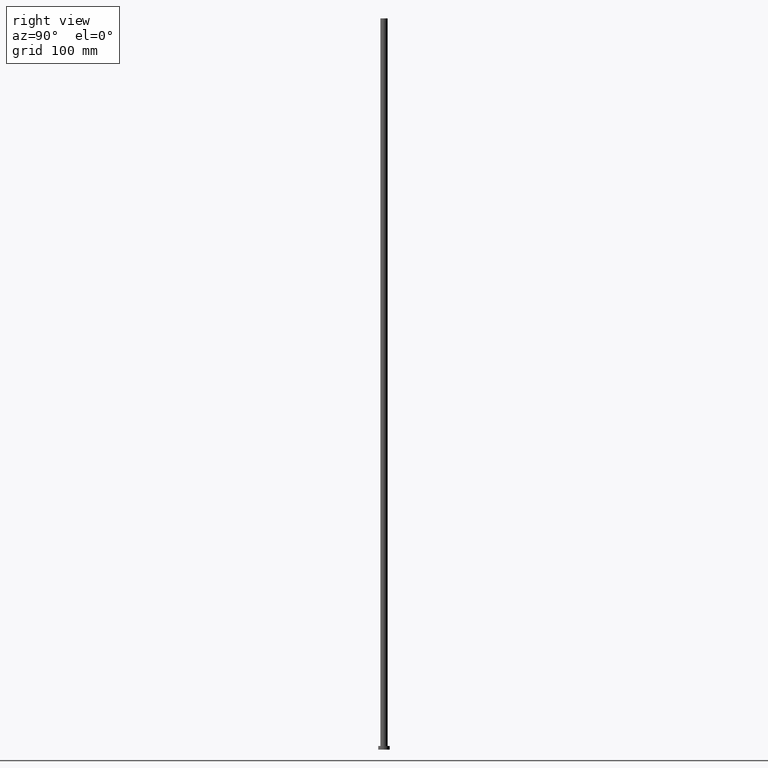
[diagram: clean part render]
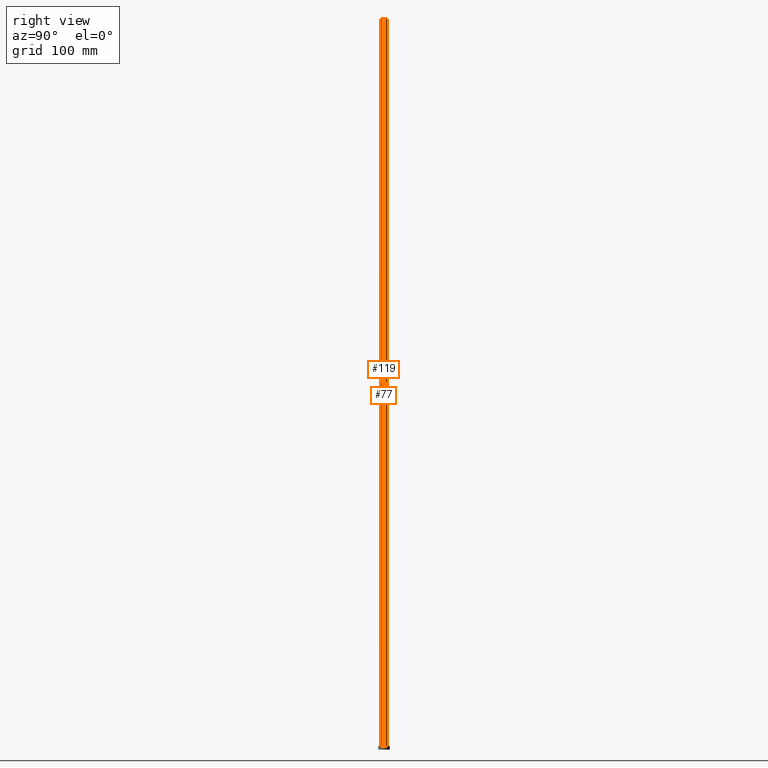
[diagram: same view with one multi-face feature highlighted, each face labeled with its STEP entity id]
A machine part, right view. The highlighted faces form ONE feature: a constant-radius fillet chain: 2 tangent blend faces with common blend radius 5 mm. The faces share edges in the B-rep.
Their STEP definitions:
[1] entity #77 (Cylinder):
#13 = DIRECTION ( 'NONE',  ( 1.000000000000000000, 0.000000000000000000, 0.000000000000000000 ) ) ;
#19 = EDGE_CURVE ( 'NONE', #42, #154, #90, .T. ) ;
#20 = VECTOR ( 'NONE', #140, 1000.000000000000000 ) ;
#25 = ORIENTED_EDGE ( 'NONE', *, *, #95, .T. ) ;
#30 = CARTESIAN_POINT ( 'NONE',  ( -5.000000000000000888, 0.000000000000000000, 5.000000000000000000 ) ) ;
#34 = EDGE_CURVE ( 'NONE', #135, #210, #53, .T. ) ;
#35 = CARTESIAN_POINT ( 'NONE',  ( 5.000000000000000888, 6.123233995736766282E-16, 1000.000000000000000 ) ) ;
#42 = VERTEX_POINT ( 'NONE', #157 ) ;
#43 = CIRCLE ( 'NONE', #183, 5.000000000000000888 ) ;
#48 = DIRECTION ( 'NONE',  ( -1.000000000000000000, 0.000000000000000000, 0.000000000000000000 ) ) ;
#53 = LINE ( 'NONE', #120, #158 ) ;
#67 = CARTESIAN_POINT ( 'NONE',  ( 5.000000000000000888, 6.123233995736766282E-16, 5.000000000000000000 ) ) ;
#77 = ADVANCED_FACE ( 'NONE', ( #186 ), #91, .T. ) ;
#80 = ORIENTED_EDGE ( 'NONE', *, *, #19, .F. ) ;
#89 = DIRECTION ( 'NONE',  ( -0.000000000000000000, -0.000000000000000000, -1.000000000000000000 ) ) ;
#90 = LINE ( 'NONE', #161, #20 ) ;
#91 = CYLINDRICAL_SURFACE ( 'NONE', #115, 5.000000000000000888 ) ;
#95 = EDGE_CURVE ( 'NONE', #210, #154, #43, .T. ) ;
#107 = DIRECTION ( 'NONE',  ( 0.000000000000000000, 0.000000000000000000, 1.000000000000000000 ) ) ;
#115 = AXIS2_PLACEMENT_3D ( 'NONE', #200, #89, #48 ) ;
#120 = CARTESIAN_POINT ( 'NONE',  ( 5.000000000000000888, 6.123233995736766282E-16, 1000.000000000000000 ) ) ;
#125 = DIRECTION ( 'NONE',  ( -0.000000000000000000, -0.000000000000000000, -1.000000000000000000 ) ) ;
#132 = ORIENTED_EDGE ( 'NONE', *, *, #151, .F. ) ;
#135 = VERTEX_POINT ( 'NONE', #35 ) ;
#140 = DIRECTION ( 'NONE',  ( -0.000000000000000000, -0.000000000000000000, -1.000000000000000000 ) ) ;
#143 = CARTESIAN_POINT ( 'NONE',  ( 0.000000000000000000, 0.000000000000000000, 1000.000000000000000 ) ) ;
#151 = EDGE_CURVE ( 'NONE', #135, #42, #168, .T. ) ;
#154 = VERTEX_POINT ( 'NONE', #30 ) ;
#157 = CARTESIAN_POINT ( 'NONE',  ( -5.000000000000000888, 0.000000000000000000, 1000.000000000000000 ) ) ;
#158 = VECTOR ( 'NONE', #125, 1000.000000000000000 ) ;
#161 = CARTESIAN_POINT ( 'NONE',  ( -5.000000000000000888, 0.000000000000000000, 1000.000000000000000 ) ) ;
#164 = CARTESIAN_POINT ( 'NONE',  ( 0.000000000000000000, 0.000000000000000000, 5.000000000000000000 ) ) ;
#168 = CIRCLE ( 'NONE', #252, 5.000000000000000888 ) ;
#183 = AXIS2_PLACEMENT_3D ( 'NONE', #164, #245, #217 ) ;
#186 = FACE_OUTER_BOUND ( 'NONE', #253, .T. ) ;
#196 = ORIENTED_EDGE ( 'NONE', *, *, #34, .T. ) ;
#200 = CARTESIAN_POINT ( 'NONE',  ( 0.000000000000000000, 0.000000000000000000, 1000.000000000000000 ) ) ;
#210 = VERTEX_POINT ( 'NONE', #67 ) ;
#217 = DIRECTION ( 'NONE',  ( 1.000000000000000000, 0.000000000000000000, 0.000000000000000000 ) ) ;
#245 = DIRECTION ( 'NONE',  ( 0.000000000000000000, 0.000000000000000000, 1.000000000000000000 ) ) ;
#252 = AXIS2_PLACEMENT_3D ( 'NONE', #143, #107, #13 ) ;
#253 = EDGE_LOOP ( 'NONE', ( #132, #196, #25, #80 ) ) ;
[2] entity #119 (Cylinder):
#10 = CARTESIAN_POINT ( 'NONE',  ( 0.000000000000000000, 0.000000000000000000, 5.000000000000000000 ) ) ;
#19 = EDGE_CURVE ( 'NONE', #42, #154, #90, .T. ) ;
#20 = VECTOR ( 'NONE', #140, 1000.000000000000000 ) ;
#21 = ORIENTED_EDGE ( 'NONE', *, *, #19, .T. ) ;
#28 = DIRECTION ( 'NONE',  ( 0.000000000000000000, 0.000000000000000000, 1.000000000000000000 ) ) ;
#30 = CARTESIAN_POINT ( 'NONE',  ( -5.000000000000000888, 0.000000000000000000, 5.000000000000000000 ) ) ;
#34 = EDGE_CURVE ( 'NONE', #135, #210, #53, .T. ) ;
#35 = CARTESIAN_POINT ( 'NONE',  ( 5.000000000000000888, 6.123233995736766282E-16, 1000.000000000000000 ) ) ;
#42 = VERTEX_POINT ( 'NONE', #157 ) ;
#49 = FACE_OUTER_BOUND ( 'NONE', #131, .T. ) ;
#53 = LINE ( 'NONE', #120, #158 ) ;
#63 = AXIS2_PLACEMENT_3D ( 'NONE', #126, #199, #198 ) ;
#66 = CARTESIAN_POINT ( 'NONE',  ( 0.000000000000000000, 0.000000000000000000, 1000.000000000000000 ) ) ;
#67 = CARTESIAN_POINT ( 'NONE',  ( 5.000000000000000888, 6.123233995736766282E-16, 5.000000000000000000 ) ) ;
#90 = LINE ( 'NONE', #161, #20 ) ;
#113 = CIRCLE ( 'NONE', #145, 5.000000000000000888 ) ;
#117 = ORIENTED_EDGE ( 'NONE', *, *, #165, .F. ) ;
#119 = ADVANCED_FACE ( 'NONE', ( #49 ), #214, .T. ) ;
#120 = CARTESIAN_POINT ( 'NONE',  ( 5.000000000000000888, 6.123233995736766282E-16, 1000.000000000000000 ) ) ;
#125 = DIRECTION ( 'NONE',  ( -0.000000000000000000, -0.000000000000000000, -1.000000000000000000 ) ) ;
#126 = CARTESIAN_POINT ( 'NONE',  ( 0.000000000000000000, 0.000000000000000000, 1000.000000000000000 ) ) ;
#131 = EDGE_LOOP ( 'NONE', ( #231, #117, #21, #197 ) ) ;
#135 = VERTEX_POINT ( 'NONE', #35 ) ;
#139 = DIRECTION ( 'NONE',  ( 0.000000000000000000, 0.000000000000000000, 1.000000000000000000 ) ) ;
#140 = DIRECTION ( 'NONE',  ( -0.000000000000000000, -0.000000000000000000, -1.000000000000000000 ) ) ;
#145 = AXIS2_PLACEMENT_3D ( 'NONE', #66, #139, #242 ) ;
#154 = VERTEX_POINT ( 'NONE', #30 ) ;
#155 = EDGE_CURVE ( 'NONE', #154, #210, #193, .T. ) ;
#157 = CARTESIAN_POINT ( 'NONE',  ( -5.000000000000000888, 0.000000000000000000, 1000.000000000000000 ) ) ;
#158 = VECTOR ( 'NONE', #125, 1000.000000000000000 ) ;
#161 = CARTESIAN_POINT ( 'NONE',  ( -5.000000000000000888, 0.000000000000000000, 1000.000000000000000 ) ) ;
#165 = EDGE_CURVE ( 'NONE', #42, #135, #113, .T. ) ;
#193 = CIRCLE ( 'NONE', #220, 5.000000000000000888 ) ;
#197 = ORIENTED_EDGE ( 'NONE', *, *, #155, .T. ) ;
#198 = DIRECTION ( 'NONE',  ( -1.000000000000000000, 0.000000000000000000, 0.000000000000000000 ) ) ;
#199 = DIRECTION ( 'NONE',  ( -0.000000000000000000, -0.000000000000000000, -1.000000000000000000 ) ) ;
#210 = VERTEX_POINT ( 'NONE', #67 ) ;
#214 = CYLINDRICAL_SURFACE ( 'NONE', #63, 5.000000000000000888 ) ;
#220 = AXIS2_PLACEMENT_3D ( 'NONE', #10, #28, #240 ) ;
#231 = ORIENTED_EDGE ( 'NONE', *, *, #34, .F. ) ;
#240 = DIRECTION ( 'NONE',  ( 1.000000000000000000, 0.000000000000000000, 0.000000000000000000 ) ) ;
#242 = DIRECTION ( 'NONE',  ( 1.000000000000000000, 0.000000000000000000, 0.000000000000000000 ) ) ;